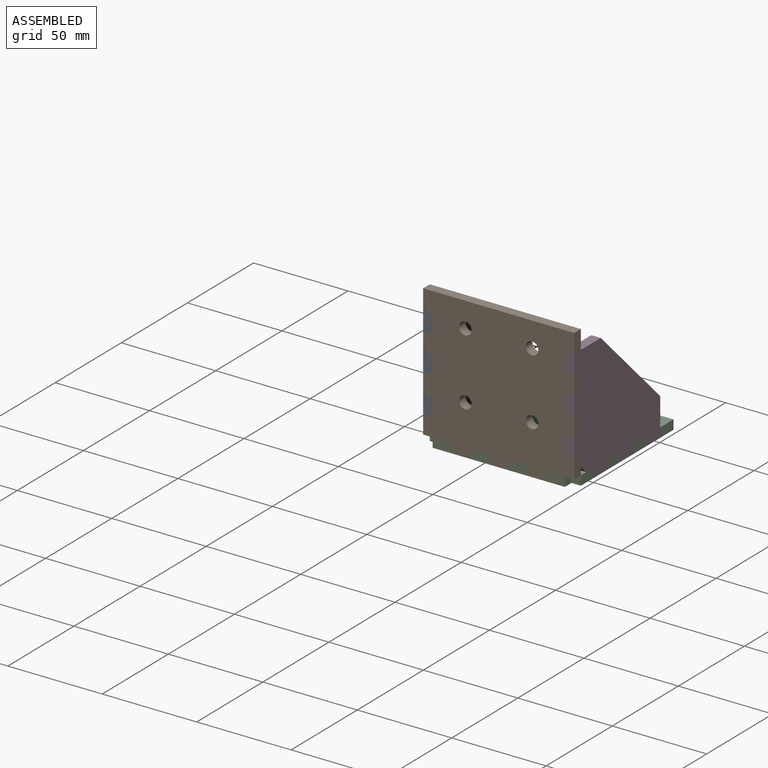
[diagram: assembled view]
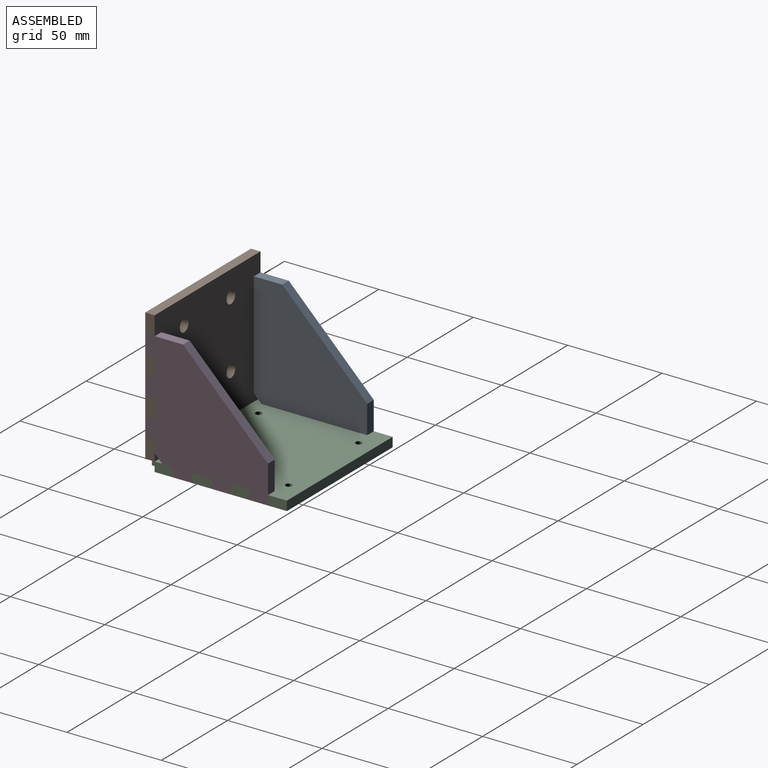
[diagram: assembled view, second angle]
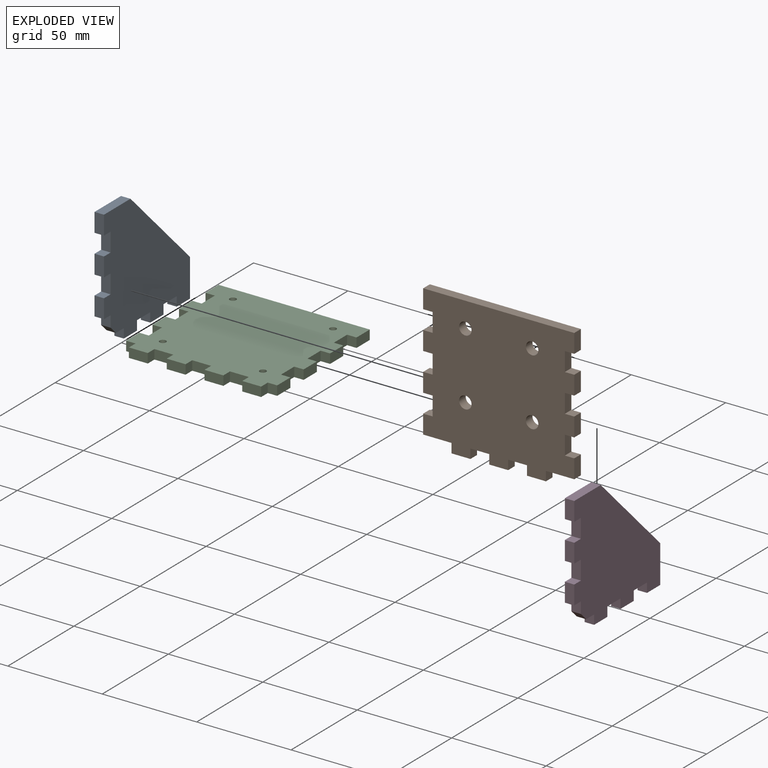
[diagram: exploded view]
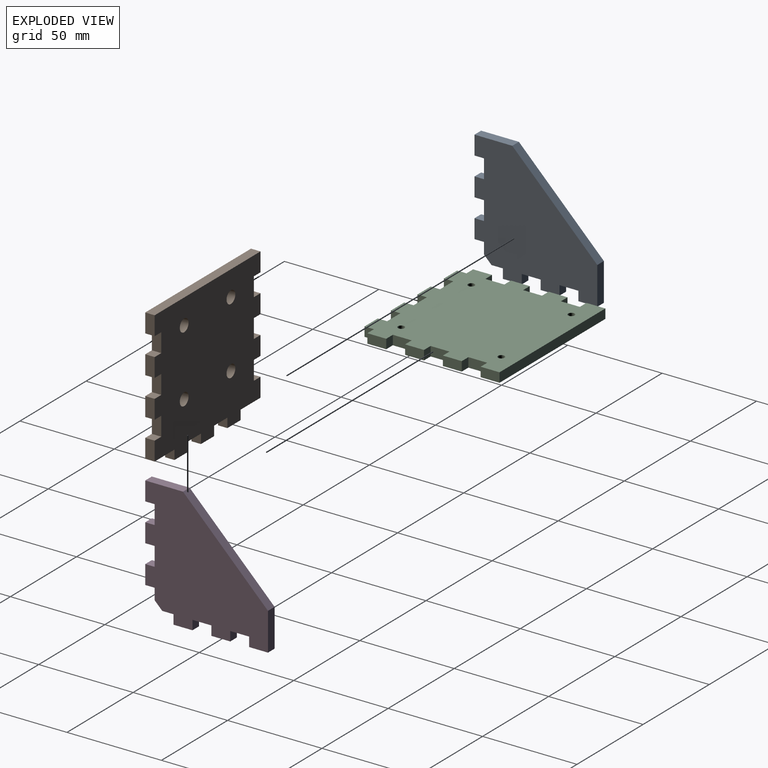
[diagram: exploded view, second angle]
ASSEMBLY  parts=4 mates=2
PART A: 28 faces, bbox 65x5x65 mm
  f0: plane 6x5mm, normal (0,0,-1), area 30mm2, adj f9,f10,f25,f27
  f1: plane 10x5mm, normal (0,0,-1), area 50mm2, adj f9,f10,f22,f24
  f2: plane 10x5mm, normal (0,0,-1), area 50mm2, adj f9,f10,f19,f21
  f3: plane 6x5mm, normal (-1,0,0), area 30mm2, adj f9,f10,f18,f27
  f4: plane 10x5mm, normal (-1,0,0), area 50mm2, adj f9,f10,f15,f16
  f5: plane 10x5mm, normal (-1,0,0), area 50mm2, adj f9,f10,f11,f13
  f6: plane 20x5mm, normal (1,0,0), area 100mm2, adj f7,f9,f10,f20
  f7: plane 45x45mm, normal (0.71,0,0.71), area 318.2mm2, adj f6,f8,f9,f10
  f8: plane 20x5mm, normal (0,0,1), area 100mm2, adj f7,f9,f10,f12
  f9: plane 65x65mm, normal (0,-1,0), area 2879.5mm2, adj f0,f1,f2,f3,f4,f5,f6,f7
  f10: plane 65x65mm, normal (0,1,0), area 2879.5mm2, adj f0,f1,f2,f3,f4,f5,f6,f7
  f11: plane 5x5mm, normal (0,0,-1), area 25mm2, adj f5,f9,f10,f12
  f12: plane 10x5mm, normal (-1,0,0), area 50mm2, adj f8,f9,f10,f11
  f13: plane 5x5mm, normal (0,0,1), area 25mm2, adj f5,f9,f10,f14
  f14: plane 10x5mm, normal (-1,0,0), area 50mm2, adj f9,f10,f13,f15
  f15: plane 5x5mm, normal (0,0,-1), area 25mm2, adj f4,f9,f10,f14
  f16: plane 5x5mm, normal (0,0,1), area 25mm2, adj f4,f9,f10,f17
  f17: plane 10x5mm, normal (-1,0,0), area 50mm2, adj f9,f10,f16,f18
  f18: plane 5x5mm, normal (0,0,-1), area 25mm2, adj f3,f9,f10,f17
  f19: plane 5x5mm, normal (-1,0,0), area 25mm2, adj f2,f9,f10,f20
  f20: plane 10x5mm, normal (0,0,-1), area 50mm2, adj f6,f9,f10,f19
  f21: plane 5x5mm, normal (1,0,0), area 25mm2, adj f2,f9,f10,f23
  f22: plane 5x5mm, normal (-1,0,0), area 25mm2, adj f1,f9,f10,f23
  f23: plane 10x5mm, normal (0,0,-1), area 50mm2, adj f9,f10,f21,f22
  f24: plane 5x5mm, normal (1,0,0), area 25mm2, adj f1,f9,f10,f26
  f25: plane 5x5mm, normal (-1,0,0), area 25mm2, adj f0,f9,f10,f26
  f26: plane 10x5mm, normal (0,0,-1), area 50mm2, adj f9,f10,f24,f25
  f27: plane 5x4mm, normal (-0.71,0,-0.71), area 28.3mm2, adj f0,f3,f9,f10
PART B: 46 faces, bbox 5x80x75 mm
  f0: plane 10x5mm, normal (0,1,0), area 50mm2, adj f11,f12,f34,f41
  f1: plane 10x5mm, normal (0,1,0), area 50mm2, adj f11,f12,f36,f39
  f2: plane 10x5mm, normal (0,1,0), area 50mm2, adj f11,f12,f33,f38
  f3: plane 10x5mm, normal (0,-1,0), area 50mm2, adj f11,f12,f27,f31
  f4: plane 10x5mm, normal (0,-1,0), area 50mm2, adj f11,f12,f24,f29
  f5: plane 10x5mm, normal (0,-1,0), area 50mm2, adj f11,f12,f22,f26
  f6: plane 10x5mm, normal (0,0,-1), area 50mm2, adj f11,f12,f18,f19
  f7: plane 10x5mm, normal (0,0,-1), area 50mm2, adj f11,f12,f13,f16
  f8: plane 15x5mm, normal (0,0,-1), area 75mm2, adj f11,f12,f14,f23
  f9: plane 80x5mm, normal (0,0,1), area 400mm2, adj f11,f12,f30,f32
  f10: plane 15x5mm, normal (0,0,-1), area 75mm2, adj f11,f12,f21,f35
  f11: plane 80x75mm, normal (1,0,0), area 5313.2mm2, adj f0,f1,f2,f3,f4,f5,f6,f7
  f12: plane 80x75mm, normal (-1,0,0), area 5313.2mm2, adj f0,f1,f2,f3,f4,f5,f6,f7
  f13: plane 5x5mm, normal (0,1,0), area 25mm2, adj f7,f11,f12,f15
  f14: plane 5x5mm, normal (0,-1,0), area 25mm2, adj f8,f11,f12,f15
  f15: plane 10x5mm, normal (0,0,-1), area 50mm2, adj f11,f12,f13,f14
  f16: plane 5x5mm, normal (0,-1,0), area 25mm2, adj f7,f11,f12,f17
  f17: plane 10x5mm, normal (0,0,-1), area 50mm2, adj f11,f12,f16,f18
  f18: plane 5x5mm, normal (0,1,0), area 25mm2, adj f6,f11,f12,f17
  f19: plane 5x5mm, normal (0,-1,0), area 25mm2, adj f6,f11,f12,f20
  f20: plane 10x5mm, normal (0,0,-1), area 50mm2, adj f11,f12,f19,f21
  f21: plane 5x5mm, normal (0,1,0), area 25mm2, adj f10,f11,f12,f20
  f22: plane 5x5mm, normal (0,0,1), area 25mm2, adj f5,f11,f12,f23
  f23: plane 10x5mm, normal (0,-1,0), area 50mm2, adj f8,f11,f12,f22
  f24: plane 5x5mm, normal (0,0,1), area 25mm2, adj f4,f11,f12,f25
  f25: plane 10x5mm, normal (0,-1,0), area 50mm2, adj f11,f12,f24,f26
  f26: plane 5x5mm, normal (0,0,-1), area 25mm2, adj f5,f11,f12,f25
  f27: plane 5x5mm, normal (0,0,1), area 25mm2, adj f3,f11,f12,f28
  f28: plane 10x5mm, normal (0,-1,0), area 50mm2, adj f11,f12,f27,f29
  f29: plane 5x5mm, normal (0,0,-1), area 25mm2, adj f4,f11,f12,f28
  f30: plane 10x5mm, normal (0,-1,0), area 50mm2, adj f9,f11,f12,f31
  f31: plane 5x5mm, normal (0,0,-1), area 25mm2, adj f3,f11,f12,f30
  f32: plane 10x5mm, normal (0,1,0), area 50mm2, adj f9,f11,f12,f33
  f33: plane 5x5mm, normal (0,0,-1), area 25mm2, adj f2,f11,f12,f32
  f34: plane 5x5mm, normal (0,0,1), area 25mm2, adj f0,f11,f12,f35
  f35: plane 10x5mm, normal (0,1,0), area 50mm2, adj f10,f11,f12,f34
  f36: plane 5x5mm, normal (0,0,-1), area 25mm2, adj f1,f11,f12,f37
  f37: plane 10x5mm, normal (0,1,0), area 50mm2, adj f11,f12,f36,f38
  f38: plane 5x5mm, normal (0,0,1), area 25mm2, adj f2,f11,f12,f37
  f39: plane 5x5mm, normal (0,0,1), area 25mm2, adj f1,f11,f12,f40
  f40: plane 10x5mm, normal (0,1,0), area 50mm2, adj f11,f12,f39,f41
  f41: plane 5x5mm, normal (0,0,-1), area 25mm2, adj f0,f11,f12,f40
  f42: cylinder r=3.3mm len=6.6mm, axis (1,0,0), area 103.7mm2, adj f11,f12
  f43: cylinder r=3.3mm len=6.6mm, axis (1,0,0), area 103.7mm2, adj f11,f12
  f44: cylinder r=3.3mm len=6.6mm, axis (1,0,0), area 103.7mm2, adj f11,f12
  f45: cylinder r=3.3mm len=6.6mm, axis (1,0,0), area 103.7mm2, adj f11,f12
PART C: 50 faces, bbox 80x75x5 mm
  f0: plane 5x5mm, normal (0,-1,0), area 25mm2, adj f12,f13,f31,f44
  f1: plane 10x5mm, normal (0,-1,0), area 50mm2, adj f12,f13,f41,f43
  f2: plane 10x5mm, normal (0,-1,0), area 50mm2, adj f12,f13,f38,f40
  f3: plane 10x5mm, normal (0,-1,0), area 50mm2, adj f12,f13,f34,f37
  f4: plane 10x5mm, normal (-1,0,0), area 50mm2, adj f12,f13,f27,f33
  f5: plane 10x5mm, normal (1,0,0), area 50mm2, adj f12,f13,f24,f30
  f6: plane 10x5mm, normal (-1,0,0), area 50mm2, adj f12,f13,f21,f29
  f7: plane 10x5mm, normal (1,0,0), area 50mm2, adj f12,f13,f18,f25
  f8: plane 10x5mm, normal (-1,0,0), area 50mm2, adj f12,f13,f14,f23
  f9: plane 10x5mm, normal (1,0,0), area 50mm2, adj f12,f13,f16,f19
  f10: plane 80x5mm, normal (0,1,0), area 400mm2, adj f12,f13,f15,f17
  f11: plane 5x5mm, normal (0,-1,0), area 25mm2, adj f12,f13,f32,f36
  f12: plane 80x75mm, normal (0,0,1), area 5463.7mm2, adj f0,f1,f2,f3,f4,f5,f6,f7
  f13: plane 80x75mm, normal (0,0,-1), area 5463.7mm2, adj f0,f1,f2,f3,f4,f5,f6,f7
  f14: plane 5x5mm, normal (0,-1,0), area 25mm2, adj f8,f12,f13,f15
  f15: plane 10x5mm, normal (-1,0,0), area 50mm2, adj f10,f12,f13,f14
  f16: plane 5x5mm, normal (0,-1,0), area 25mm2, adj f9,f12,f13,f17
  f17: plane 10x5mm, normal (1,0,0), area 50mm2, adj f10,f12,f13,f16
  f18: plane 5x5mm, normal (0,-1,0), area 25mm2, adj f7,f12,f13,f20
  f19: plane 5x5mm, normal (0,1,0), area 25mm2, adj f9,f12,f13,f20
  f20: plane 10x5mm, normal (1,0,0), area 50mm2, adj f12,f13,f18,f19
  f21: plane 5x5mm, normal (0,-1,0), area 25mm2, adj f6,f12,f13,f22
  f22: plane 10x5mm, normal (-1,0,0), area 50mm2, adj f12,f13,f21,f23
  f23: plane 5x5mm, normal (0,1,0), area 25mm2, adj f8,f12,f13,f22
  f24: plane 5x5mm, normal (0,-1,0), area 25mm2, adj f5,f12,f13,f26
  f25: plane 5x5mm, normal (0,1,0), area 25mm2, adj f7,f12,f13,f26
  f26: plane 10x5mm, normal (1,0,0), area 50mm2, adj f12,f13,f24,f25
  f27: plane 5x5mm, normal (0,-1,0), area 25mm2, adj f4,f12,f13,f28
  f28: plane 10x5mm, normal (-1,0,0), area 50mm2, adj f12,f13,f27,f29
  f29: plane 5x5mm, normal (0,1,0), area 25mm2, adj f6,f12,f13,f28
  f30: plane 5x5mm, normal (0,1,0), area 25mm2, adj f5,f12,f13,f31
  f31: plane 10x5mm, normal (1,0,0), area 50mm2, adj f0,f12,f13,f30
  f32: plane 10x5mm, normal (-1,0,0), area 50mm2, adj f11,f12,f13,f33
  f33: plane 5x5mm, normal (0,1,0), area 25mm2, adj f4,f12,f13,f32
  f34: plane 5x5mm, normal (1,0,0), area 25mm2, adj f3,f12,f13,f35
  f35: plane 10x5mm, normal (0,-1,0), area 50mm2, adj f12,f13,f34,f36
  f36: plane 5x5mm, normal (-1,0,0), area 25mm2, adj f11,f12,f13,f35
  f37: plane 5x5mm, normal (-1,0,0), area 25mm2, adj f3,f12,f13,f39
  f38: plane 5x5mm, normal (1,0,0), area 25mm2, adj f2,f12,f13,f39
  f39: plane 10x5mm, normal (0,-1,0), area 50mm2, adj f12,f13,f37,f38
  f40: plane 5x5mm, normal (-1,0,0), area 25mm2, adj f2,f12,f13,f42
  f41: plane 5x5mm, normal (1,0,0), area 25mm2, adj f1,f12,f13,f42
  f42: plane 10x5mm, normal (0,-1,0), area 50mm2, adj f12,f13,f40,f41
  f43: plane 5x5mm, normal (-1,0,0), area 25mm2, adj f1,f12,f13,f45
  f44: plane 5x5mm, normal (1,0,0), area 25mm2, adj f0,f12,f13,f45
  f45: plane 10x5mm, normal (0,-1,0), area 50mm2, adj f12,f13,f43,f44
  f46: cylinder r=1.7mm len=5mm, axis (0,0,-1), area 53.4mm2, adj f12,f13
  f47: cylinder r=1.7mm len=5mm, axis (0,0,-1), area 53.4mm2, adj f12,f13
  f48: cylinder r=1.7mm len=5mm, axis (0,0,-1), area 53.4mm2, adj f12,f13
  f49: cylinder r=1.7mm len=5mm, axis (0,0,-1), area 53.4mm2, adj f12,f13
PART D: same geometry as A
PLACE A rot(axis=(0,0,1),90deg) t=(-40.98,-3.03,34.72)mm
PLACE B rot(axis=(0,0,-1),90deg) t=(-3.48,-35.53,39.72)mm
PLACE C t=(-3.48,1.97,2.22)mm fixed
PLACE D rot(axis=(0,0,1),90deg) t=(34.02,-3.03,34.72)mm
MATE fastened C.f34 <-> B.f14  axis (1,0,0) through (-28.48,-35.53,2.22)mm
MATE fastened B.f34 <-> D.f18  axis (0,0,1) through (34.02,-35.53,14.72)mm
